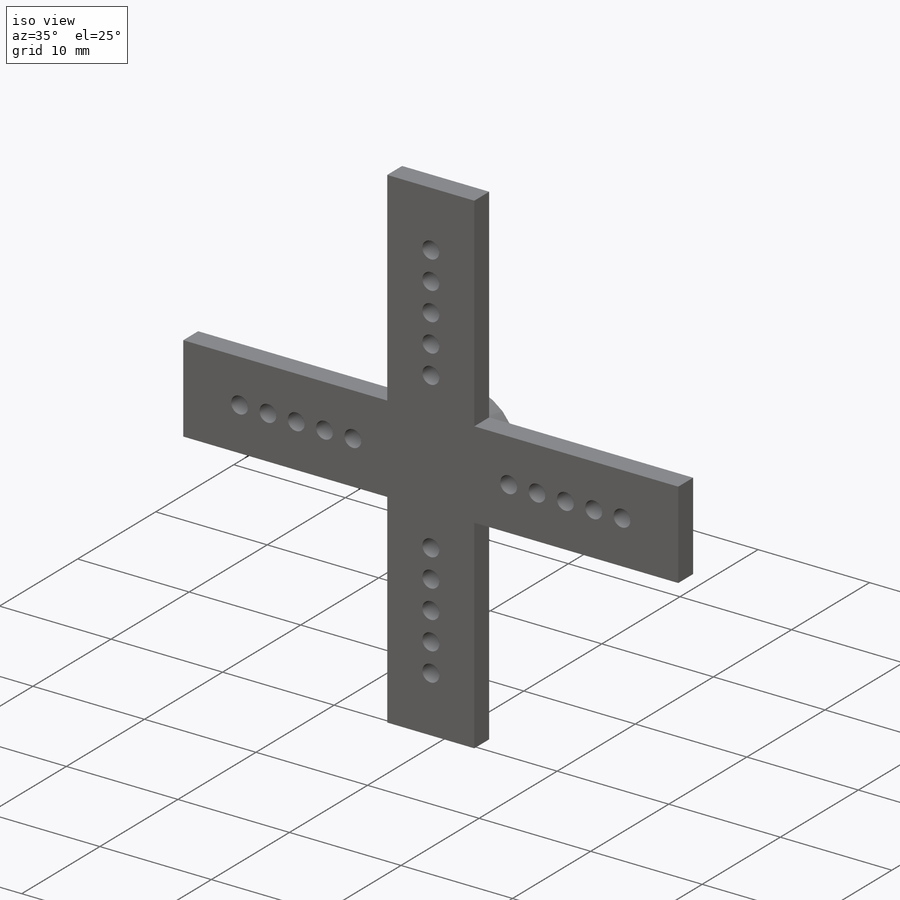
[diagram: iso view]
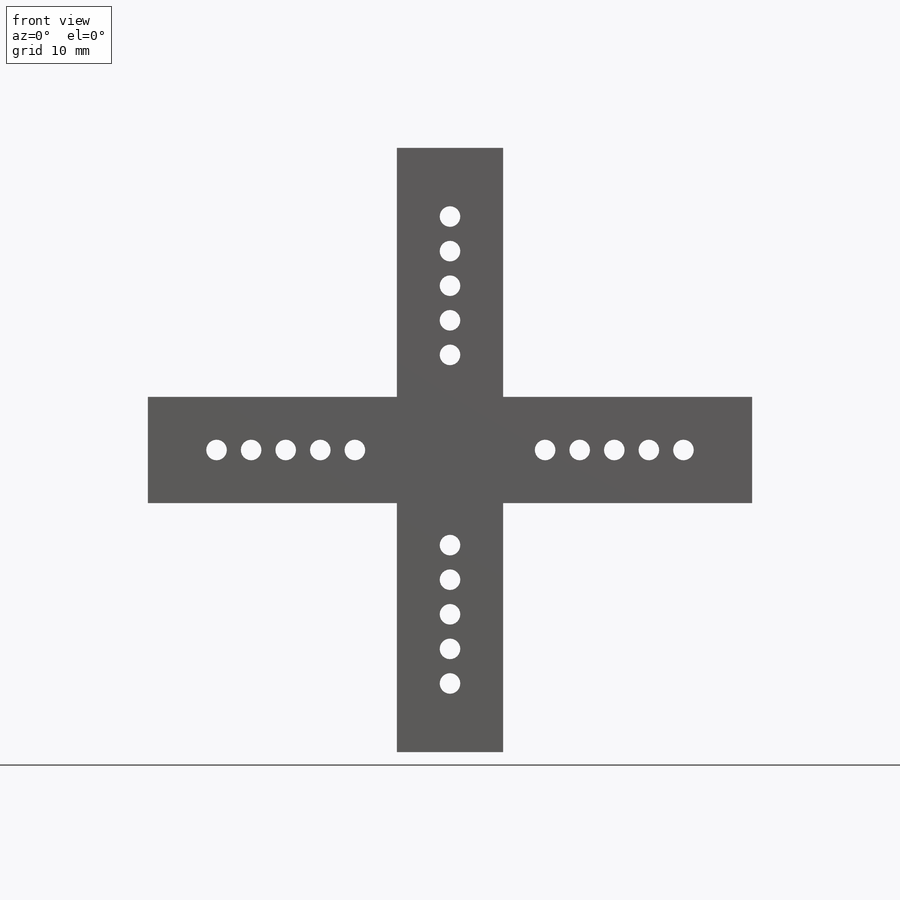
[diagram: front view]
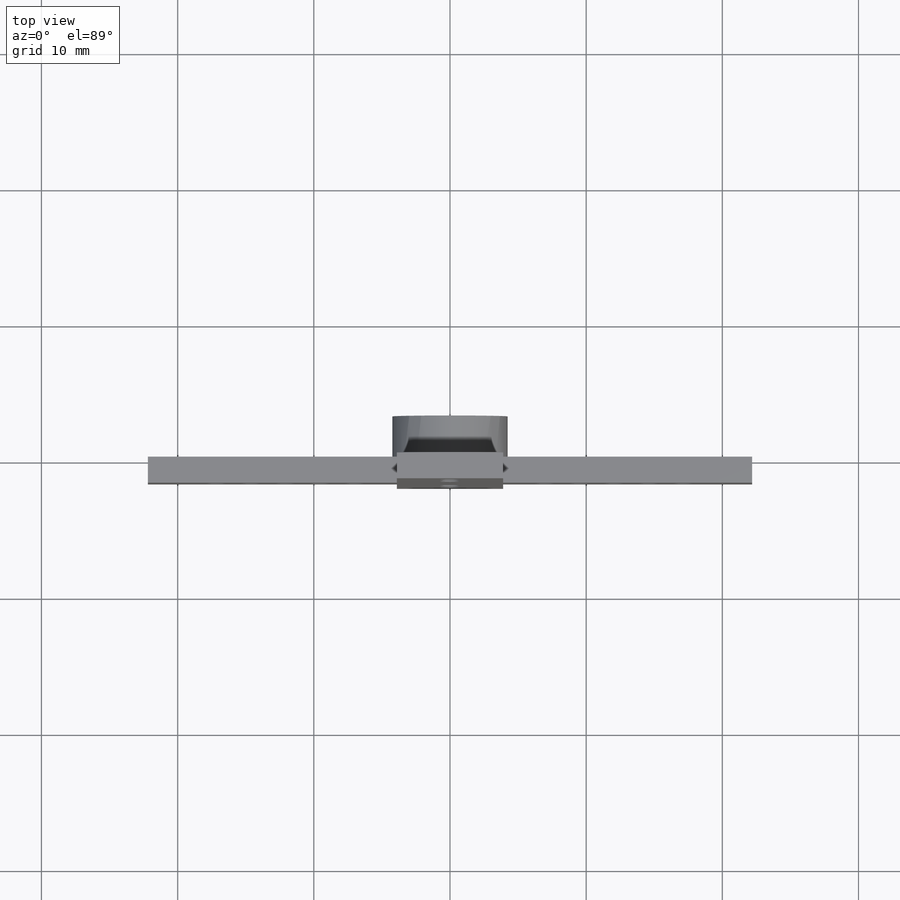
[diagram: top view]
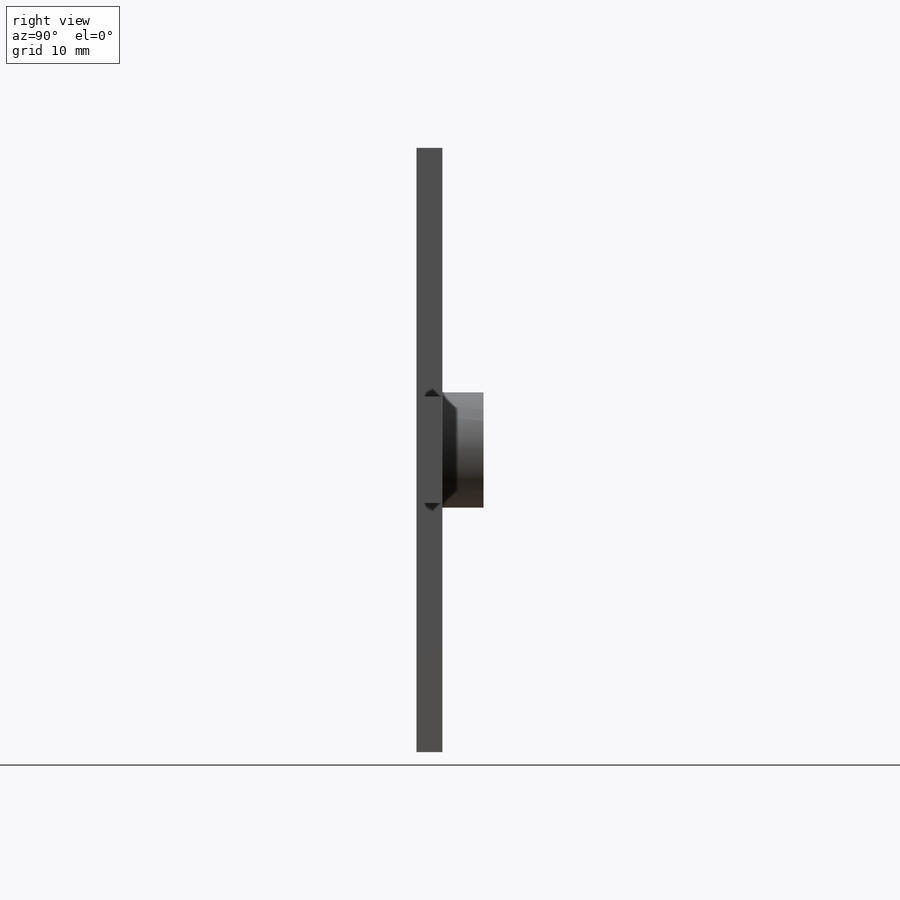
[diagram: right view]
SOLIDWORKS PART (.sldprt)
format: sldprt  version: not decoded by parser v0  size: 216,576 bytes
history: native  units: mm
features: sketch x6, extrude x2, pattern_circular x2, material x1, hole x1, pattern_linear x1, cut_extrude x1 (+16 scaffold rows collapsed)
feature tree (30):
  scaffold x16  (default folders/planes/origin — collapsed)
  material  "Material <not specified>"
  sketch  "Sketch1"  dims[D1=44.3738mm]
  extrude  "Extrude1"  Depth=1.905mm
  sketch  "Sketch2"  dims[D1=~2.605413mm]
  extrude  "Extrude2"  Depth=3.0226mm
  sketch  "Sketch3"  dims[D1=6.985mm]
  hole  "#53 (0.0595) Diameter Hole1"  Diameter=1.5113mm Depth=5.08mm
  sketch  "3DSketch1"
  sketch  "Sketch4"  dims[hole-wizard template sketch: 46 standard entries collapsed; hole parameters kept: c15.Hole Dia.=1.5113mm c15.Hole Depth=5.08mm c15.D3=~14.816244mm c15.Drill Angle=118.0deg]
  pattern_linear  "LPattern2"  Count1=5 Count2=1 Spacing1=2.54mm Spacing2=2.54mm
  pattern_circular  "CirPattern2"  Count=4 Angle=360deg
  sketch  "Sketch6"
  cut_extrude  "Extrude3"  [1 undecoded]
  pattern_circular  "CirPattern3"  Count=4 Angle=360deg
decode coverage: 10 of 13 modeling features carry decoded parameters
note: ~ marks probable driven/reference dimensions
note: 1 parameter value undecoded
note: suppression state not decoded; provenance and decode notes live in map.json
